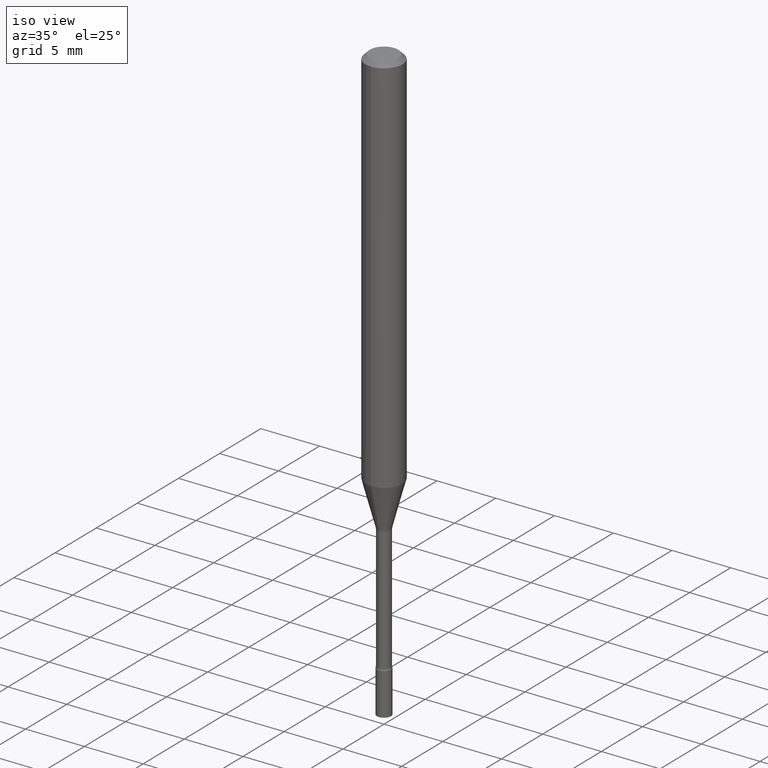
[diagram: clean part render]
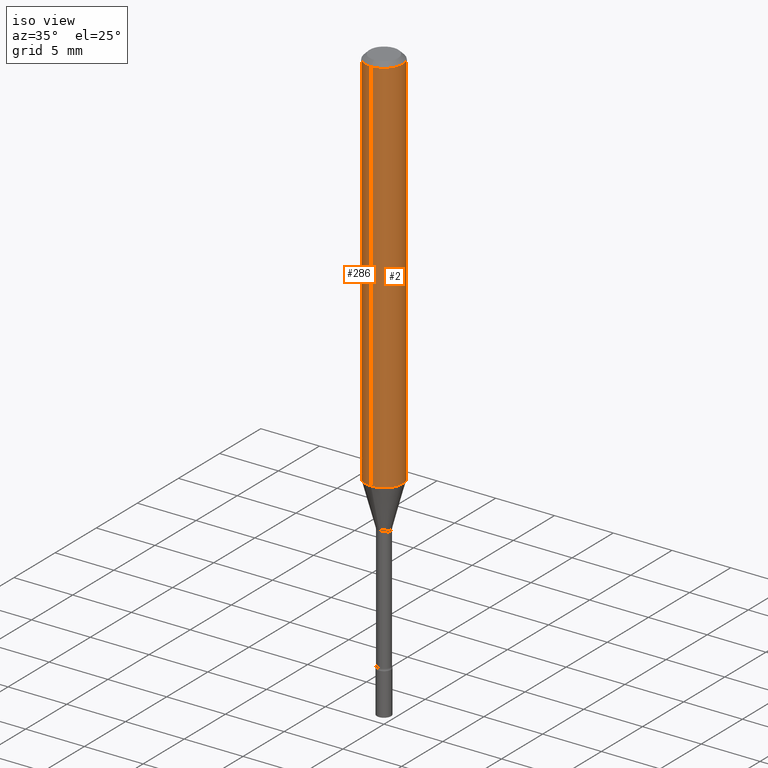
[diagram: same view with one multi-face feature highlighted, each face labeled with its STEP entity id]
A machine part, iso view. The highlighted faces form ONE feature: a constant-radius fillet chain: 2 tangent blend faces with common blend radius 1.5875 mm. The faces share edges in the B-rep.
Their STEP definitions:
[1] entity #2 (Cylinder):
#2 = ADVANCED_FACE ( 'NONE', ( #157 ), #231, .T. ) ;
#9 = CARTESIAN_POINT ( 'NONE',  ( 4.440892098500625669E-16, 0.06250000000000000000, -2.182167078137229810E-16 ) ) ;
#12 = CIRCLE ( 'NONE', #518, 0.06250000000000000000 ) ;
#23 = CARTESIAN_POINT ( 'NONE',  ( -4.364351673553916201E-16, -0.06250000000000000000, 2.182167078137229810E-16 ) ) ;
#41 = DIRECTION ( 'NONE',  ( -6.982962677686265922E-15, -1.000000000000000000, 4.370956789862821150E-15 ) ) ;
#66 = DIRECTION ( 'NONE',  ( -2.445478591985838029E-29, 3.491467325019567696E-15, 1.000000000000000000 ) ) ;
#105 = CARTESIAN_POINT ( 'NONE',  ( -4.364351673553603615E-16, -0.06250000000000451028, -1.285225147374217780 ) ) ;
#116 = EDGE_CURVE ( 'NONE', #462, #516, #507, .T. ) ;
#130 = DIRECTION ( 'NONE',  ( -6.982962677686265922E-15, -1.000000000000000000, 3.483106191921935554E-15 ) ) ;
#142 = CARTESIAN_POINT ( 'NONE',  ( -4.364351673553912750E-16, -0.06250000000000005551, -0.01499999999999981209 ) ) ;
#152 = DIRECTION ( 'NONE',  ( -6.982962677686265922E-15, -1.000000000000000000, 3.491467325019567696E-15 ) ) ;
#154 = ORIENTED_EDGE ( 'NONE', *, *, #116, .F. ) ;
#157 = FACE_OUTER_BOUND ( 'NONE', #262, .T. ) ;
#167 = AXIS2_PLACEMENT_3D ( 'NONE', #210, #327, #130 ) ;
#179 = CARTESIAN_POINT ( 'NONE',  ( 4.440892098500937762E-16, 0.06249999999999548278, -1.285225147374218224 ) ) ;
#210 = CARTESIAN_POINT ( 'NONE',  ( 3.668217887978764348E-31, -5.237200987529362293E-17, -0.01500000000000003067 ) ) ;
#216 = VECTOR ( 'NONE', #237, 39.37007874015748143 ) ;
#220 = EDGE_CURVE ( 'NONE', #462, #509, #12, .T. ) ;
#231 = CYLINDRICAL_SURFACE ( 'NONE', #321, 0.06250000000000000000 ) ;
#234 = CIRCLE ( 'NONE', #167, 0.06250000000000000000 ) ;
#237 = DIRECTION ( 'NONE',  ( -2.445478591985837749E-29, 3.491467325019568091E-15, 1.000000000000000000 ) ) ;
#258 = CARTESIAN_POINT ( 'NONE',  ( 4.440892098500941706E-16, 0.06249999999999995143, -0.01500000000000024751 ) ) ;
#260 = ORIENTED_EDGE ( 'NONE', *, *, #460, .F. ) ;
#262 = EDGE_LOOP ( 'NONE', ( #351, #390, #260, #154 ) ) ;
#294 = LINE ( 'NONE', #9, #337 ) ;
#315 = CARTESIAN_POINT ( 'NONE',  ( 0.000000000000000000, 0.000000000000000000, 0.000000000000000000 ) ) ;
#321 = AXIS2_PLACEMENT_3D ( 'NONE', #315, #511, #152 ) ;
#322 = EDGE_CURVE ( 'NONE', #509, #500, #294, .T. ) ;
#327 = DIRECTION ( 'NONE',  ( -2.445478591985838029E-29, 3.491467325019567696E-15, 1.000000000000000000 ) ) ;
#337 = VECTOR ( 'NONE', #455, 39.37007874015748143 ) ;
#351 = ORIENTED_EDGE ( 'NONE', *, *, #220, .T. ) ;
#390 = ORIENTED_EDGE ( 'NONE', *, *, #322, .T. ) ;
#455 = DIRECTION ( 'NONE',  ( -2.445478591985837749E-29, 3.491467325019568091E-15, 1.000000000000000000 ) ) ;
#460 = EDGE_CURVE ( 'NONE', #516, #500, #234, .T. ) ;
#462 = VERTEX_POINT ( 'NONE', #105 ) ;
#500 = VERTEX_POINT ( 'NONE', #258 ) ;
#507 = LINE ( 'NONE', #23, #216 ) ;
#509 = VERTEX_POINT ( 'NONE', #179 ) ;
#511 = DIRECTION ( 'NONE',  ( -2.445478591985838029E-29, 3.491467325019567696E-15, 1.000000000000000000 ) ) ;
#514 = CARTESIAN_POINT ( 'NONE',  ( 3.142990583785493865E-29, -4.487321607350540658E-15, -1.285225147374218002 ) ) ;
#516 = VERTEX_POINT ( 'NONE', #142 ) ;
#518 = AXIS2_PLACEMENT_3D ( 'NONE', #514, #66, #41 ) ;
[2] entity #286 (Cylinder):
#8 = EDGE_CURVE ( 'NONE', #500, #516, #32, .T. ) ;
#9 = CARTESIAN_POINT ( 'NONE',  ( 4.440892098500625669E-16, 0.06250000000000000000, -2.182167078137229810E-16 ) ) ;
#23 = CARTESIAN_POINT ( 'NONE',  ( -4.364351673553916201E-16, -0.06250000000000000000, 2.182167078137229810E-16 ) ) ;
#32 = CIRCLE ( 'NONE', #425, 0.06250000000000000000 ) ;
#71 = CARTESIAN_POINT ( 'NONE',  ( 3.142990583785493865E-29, -4.487321607350540658E-15, -1.285225147374218002 ) ) ;
#74 = DIRECTION ( 'NONE',  ( -2.445478591985838029E-29, 3.491467325019567696E-15, 1.000000000000000000 ) ) ;
#84 = CARTESIAN_POINT ( 'NONE',  ( 0.000000000000000000, 0.000000000000000000, 0.000000000000000000 ) ) ;
#105 = CARTESIAN_POINT ( 'NONE',  ( -4.364351673553603615E-16, -0.06250000000000451028, -1.285225147374217780 ) ) ;
#116 = EDGE_CURVE ( 'NONE', #462, #516, #507, .T. ) ;
#119 = EDGE_LOOP ( 'NONE', ( #452, #396, #139, #302 ) ) ;
#139 = ORIENTED_EDGE ( 'NONE', *, *, #116, .T. ) ;
#142 = CARTESIAN_POINT ( 'NONE',  ( -4.364351673553912750E-16, -0.06250000000000005551, -0.01499999999999981209 ) ) ;
#179 = CARTESIAN_POINT ( 'NONE',  ( 4.440892098500937762E-16, 0.06249999999999548278, -1.285225147374218224 ) ) ;
#191 = DIRECTION ( 'NONE',  ( -6.982962677686265922E-15, -1.000000000000000000, 4.370956789862821150E-15 ) ) ;
#208 = CIRCLE ( 'NONE', #504, 0.06250000000000000000 ) ;
#214 = CYLINDRICAL_SURFACE ( 'NONE', #299, 0.06250000000000000000 ) ;
#216 = VECTOR ( 'NONE', #237, 39.37007874015748143 ) ;
#237 = DIRECTION ( 'NONE',  ( -2.445478591985837749E-29, 3.491467325019568091E-15, 1.000000000000000000 ) ) ;
#252 = EDGE_CURVE ( 'NONE', #509, #462, #208, .T. ) ;
#253 = FACE_OUTER_BOUND ( 'NONE', #119, .T. ) ;
#258 = CARTESIAN_POINT ( 'NONE',  ( 4.440892098500941706E-16, 0.06249999999999995143, -0.01500000000000024751 ) ) ;
#286 = ADVANCED_FACE ( 'NONE', ( #253 ), #214, .T. ) ;
#294 = LINE ( 'NONE', #9, #337 ) ;
#299 = AXIS2_PLACEMENT_3D ( 'NONE', #84, #496, #323 ) ;
#302 = ORIENTED_EDGE ( 'NONE', *, *, #8, .F. ) ;
#311 = CARTESIAN_POINT ( 'NONE',  ( 3.668217887978764348E-31, -5.237200987529362293E-17, -0.01500000000000003067 ) ) ;
#322 = EDGE_CURVE ( 'NONE', #509, #500, #294, .T. ) ;
#323 = DIRECTION ( 'NONE',  ( -6.982962677686265922E-15, -1.000000000000000000, 3.491467325019567696E-15 ) ) ;
#337 = VECTOR ( 'NONE', #455, 39.37007874015748143 ) ;
#389 = DIRECTION ( 'NONE',  ( -2.445478591985838029E-29, 3.491467325019567696E-15, 1.000000000000000000 ) ) ;
#396 = ORIENTED_EDGE ( 'NONE', *, *, #252, .T. ) ;
#425 = AXIS2_PLACEMENT_3D ( 'NONE', #311, #74, #483 ) ;
#452 = ORIENTED_EDGE ( 'NONE', *, *, #322, .F. ) ;
#455 = DIRECTION ( 'NONE',  ( -2.445478591985837749E-29, 3.491467325019568091E-15, 1.000000000000000000 ) ) ;
#462 = VERTEX_POINT ( 'NONE', #105 ) ;
#483 = DIRECTION ( 'NONE',  ( -6.982962677686265922E-15, -1.000000000000000000, 3.483106191921935554E-15 ) ) ;
#496 = DIRECTION ( 'NONE',  ( -2.445478591985838029E-29, 3.491467325019567696E-15, 1.000000000000000000 ) ) ;
#500 = VERTEX_POINT ( 'NONE', #258 ) ;
#504 = AXIS2_PLACEMENT_3D ( 'NONE', #71, #389, #191 ) ;
#507 = LINE ( 'NONE', #23, #216 ) ;
#509 = VERTEX_POINT ( 'NONE', #179 ) ;
#516 = VERTEX_POINT ( 'NONE', #142 ) ;